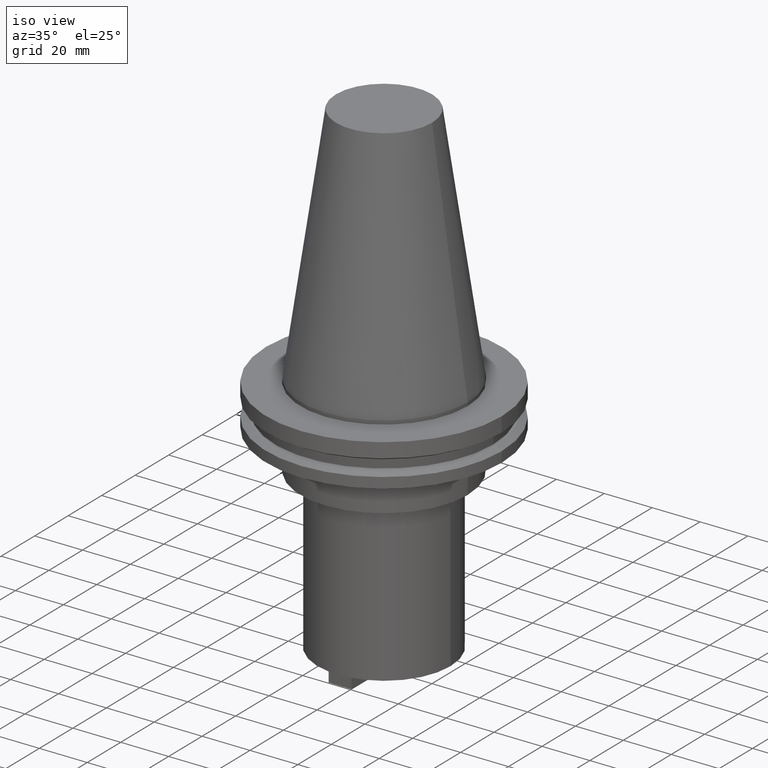
[diagram: clean part render]
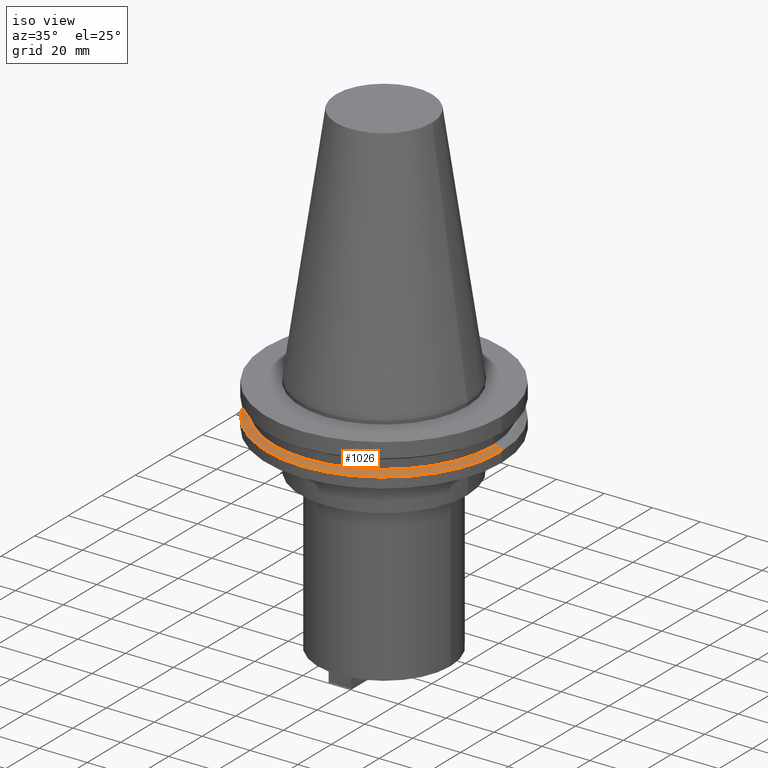
[diagram: same view with one face highlighted and labeled with its STEP entity id]
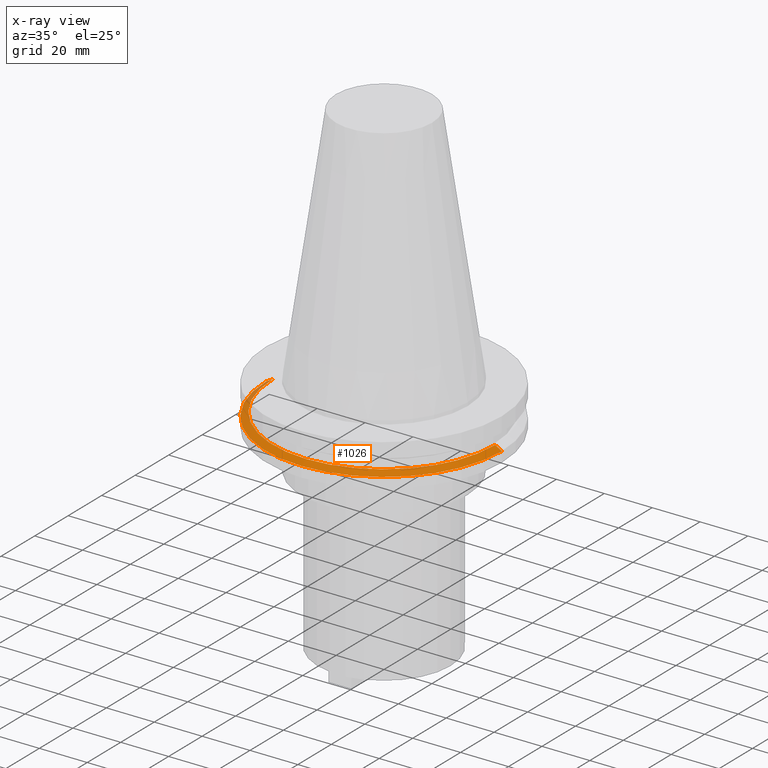
[diagram: x-ray of the same camera — body ghosted, the highlighted face saturated]
A machine part, iso view. The second image highlights one B-rep face of the part: STEP entity #1026.
The next image is the same camera in x-ray: the body ghosted, the highlighted face saturated — about 4% of this face is hidden behind the body in this view.
In plain terms, the highlighted conical surface has half-angle 60 deg.
Its self-contained STEP definition (entity closure, byte-faithful):
#2 = CARTESIAN_POINT ( 'NONE',  ( -46.43919780457007818, 0.000000000000000000, -13.05499999999999794 ) ) ;
#5 = CARTESIAN_POINT ( 'NONE',  ( -49.21499999999998920, 6.027099222003697037E-15, -14.65761014474876944 ) ) ;
#9 = ORIENTED_EDGE ( 'NONE', *, *, #379, .F. ) ;
#83 = CARTESIAN_POINT ( 'NONE',  ( 0.000000000000000000, 0.000000000000000000, -14.65761014474876944 ) ) ;
#113 = AXIS2_PLACEMENT_3D ( 'NONE', #352, #626, #461 ) ;
#166 = VECTOR ( 'NONE', #625, 1000.000000000000114 ) ;
#168 = DIRECTION ( 'NONE',  ( 1.000000000000000000, 0.000000000000000000, 0.000000000000000000 ) ) ;
#259 = EDGE_CURVE ( 'NONE', #1058, #968, #355, .T. ) ;
#346 = ORIENTED_EDGE ( 'NONE', *, *, #259, .T. ) ;
#352 = CARTESIAN_POINT ( 'NONE',  ( 0.000000000000000000, 0.000000000000000000, -13.05499999999999794 ) ) ;
#355 = CIRCLE ( 'NONE', #777, 49.21499999999998920 ) ;
#374 = LINE ( 'NONE', #719, #166 ) ;
#379 = EDGE_CURVE ( 'NONE', #683, #953, #797, .T. ) ;
#415 = DIRECTION ( 'NONE',  ( 0.000000000000000000, 0.000000000000000000, -1.000000000000000000 ) ) ;
#436 = ORIENTED_EDGE ( 'NONE', *, *, #628, .T. ) ;
#461 = DIRECTION ( 'NONE',  ( 1.000000000000000000, 0.000000000000000000, 0.000000000000000000 ) ) ;
#486 = CARTESIAN_POINT ( 'NONE',  ( 49.21499999999998920, 0.000000000000000000, -14.65761014474876944 ) ) ;
#591 = CARTESIAN_POINT ( 'NONE',  ( 0.000000000000000000, 0.000000000000000000, -14.65761014474876944 ) ) ;
#592 = AXIS2_PLACEMENT_3D ( 'NONE', #83, #415, #1089 ) ;
#625 = DIRECTION ( 'NONE',  ( 0.8660254037844169472, 1.060575238724880168E-16, -0.5000000000000375255 ) ) ;
#626 = DIRECTION ( 'NONE',  ( -0.000000000000000000, -0.000000000000000000, 1.000000000000000000 ) ) ;
#628 = EDGE_CURVE ( 'NONE', #683, #1058, #1078, .T. ) ;
#635 = DIRECTION ( 'NONE',  ( -0.8660254037844169472, 0.000000000000000000, -0.5000000000000375255 ) ) ;
#683 = VERTEX_POINT ( 'NONE', #2 ) ;
#719 = CARTESIAN_POINT ( 'NONE',  ( 49.21499999999998920, 6.027099222003697037E-15, -14.65761014474876944 ) ) ;
#777 = AXIS2_PLACEMENT_3D ( 'NONE', #591, #842, #168 ) ;
#797 = CIRCLE ( 'NONE', #113, 46.43919780457007818 ) ;
#816 = EDGE_LOOP ( 'NONE', ( #876, #9, #436, #346 ) ) ;
#825 = CARTESIAN_POINT ( 'NONE',  ( -49.21499999999998920, 0.000000000000000000, -14.65761014474876944 ) ) ;
#833 = FACE_OUTER_BOUND ( 'NONE', #816, .T. ) ;
#835 = VECTOR ( 'NONE', #635, 1000.000000000000114 ) ;
#842 = DIRECTION ( 'NONE',  ( -0.000000000000000000, -0.000000000000000000, 1.000000000000000000 ) ) ;
#876 = ORIENTED_EDGE ( 'NONE', *, *, #902, .F. ) ;
#902 = EDGE_CURVE ( 'NONE', #953, #968, #374, .T. ) ;
#953 = VERTEX_POINT ( 'NONE', #993 ) ;
#968 = VERTEX_POINT ( 'NONE', #486 ) ;
#993 = CARTESIAN_POINT ( 'NONE',  ( 46.43919780457007818, 5.857130358318725715E-15, -13.05499999999999794 ) ) ;
#1026 = ADVANCED_FACE ( 'NONE', ( #833 ), #1085, .T. ) ;
#1058 = VERTEX_POINT ( 'NONE', #5 ) ;
#1078 = LINE ( 'NONE', #825, #835 ) ;
#1085 = CONICAL_SURFACE ( 'NONE', #592, 49.21499999999998920, 1.047197551196554333 ) ;
#1089 = DIRECTION ( 'NONE',  ( -1.000000000000000000, 0.000000000000000000, 0.000000000000000000 ) ) ;